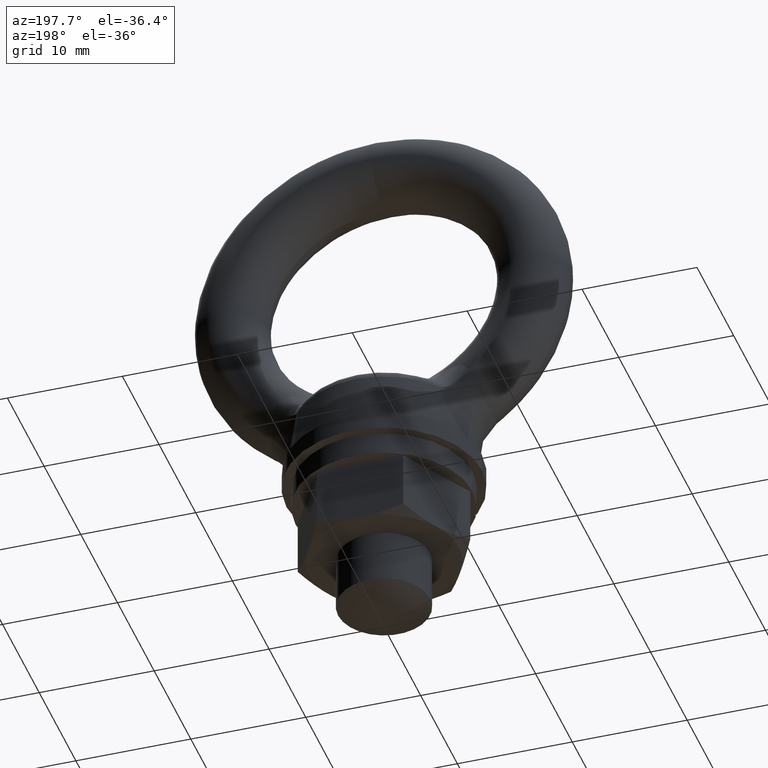
[diagram: clean part render]
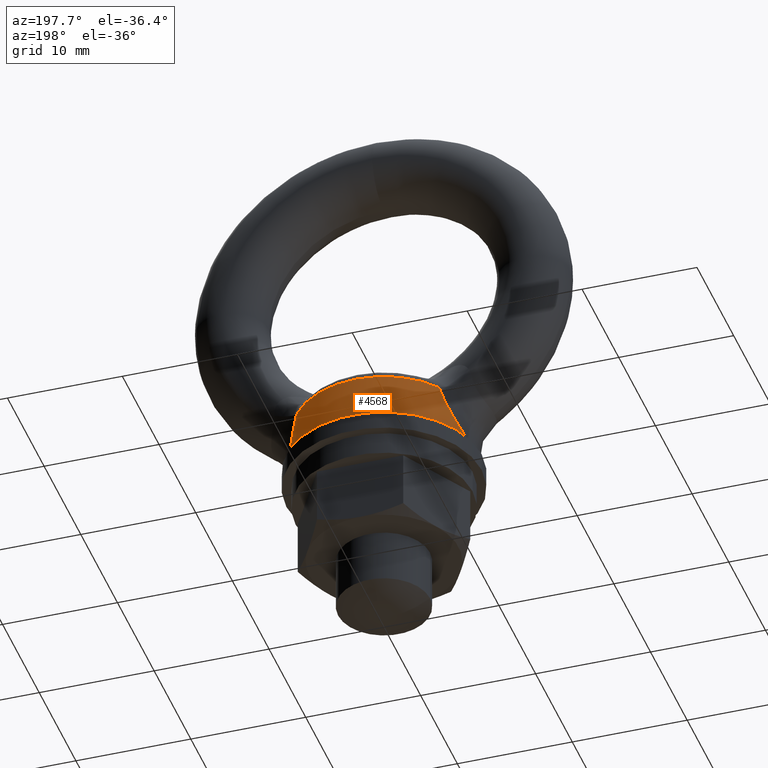
[diagram: same view with one face highlighted and labeled with its STEP entity id]
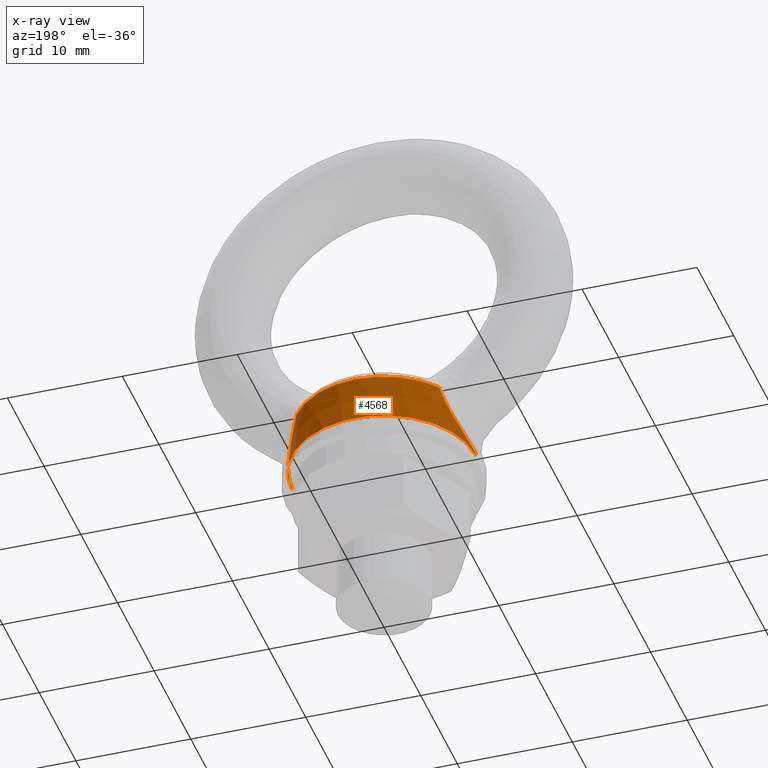
[diagram: x-ray of the same camera — body ghosted, the highlighted face saturated]
A machine part, auxiliary view. The second image highlights one B-rep face of the part: STEP entity #4568.
The next image is the same camera in x-ray: the body ghosted, the highlighted face saturated — about 0% of this face is hidden behind the body in this view.
In plain terms, the highlighted conical surface has half-angle 5 deg.
Its self-contained STEP definition (entity closure, byte-faithful):
#2153 = CIRCLE ( 'NONE', #2197, 7.623795053739380400 ) ;
#2194 = DIRECTION ( 'NONE',  ( 1.000000000000000000, 0.0000000000000000000, 0.0000000000000000000 ) ) ;
#2195 = DIRECTION ( 'NONE',  ( 0.0000000000000000000, 0.0000000000000000000, -1.000000000000000000 ) ) ;
#2196 = CARTESIAN_POINT ( 'NONE',  ( 0.0000000000000000000, 0.0000000000000000000, -12.69996661424272100 ) ) ;
#2197 = AXIS2_PLACEMENT_3D ( 'NONE', #2196, #2195, #2194 ) ;
#2285 = DIRECTION ( 'NONE',  ( -1.000000000000000000, 0.0000000000000000000, 0.0000000000000000000 ) ) ;
#2286 = DIRECTION ( 'NONE',  ( 0.0000000000000000000, 0.0000000000000000000, -1.000000000000000000 ) ) ;
#2287 = CARTESIAN_POINT ( 'NONE',  ( 0.0000000000000000000, 0.0000000000000000000, -17.00000000000000000 ) ) ;
#2288 = AXIS2_PLACEMENT_3D ( 'NONE', #2287, #2286, #2285 ) ;
#2289 = CONICAL_SURFACE ( 'NONE', #2288, 8.000000000000000000, 0.08726664082111058900 ) ;
#2291 = FACE_OUTER_BOUND ( 'NONE', #4553, .T. ) ;
#2327 = CARTESIAN_POINT ( 'NONE',  ( -6.210392761138069600, 4.421908272886815500, -12.69996661424272100 ) ) ;
#2328 = CARTESIAN_POINT ( 'NONE',  ( -6.352774983116775700, 4.303035545892445400, -13.23760804401850400 ) ) ;
#2329 = CARTESIAN_POINT ( 'NONE',  ( -6.521835315794030300, 4.133273454851131000, -13.74751196352283200 ) ) ;
#2330 = CARTESIAN_POINT ( 'NONE',  ( -6.802326438138770500, 3.775150612293932000, -14.46515609343280900 ) ) ;
#2331 = CARTESIAN_POINT ( 'NONE',  ( -6.900199435006725500, 3.638051344731991300, -14.69613900649317600 ) ) ;
#2332 = CARTESIAN_POINT ( 'NONE',  ( -7.094806094114287200, 3.331948585593758900, -15.12746064357346900 ) ) ;
#2333 = CARTESIAN_POINT ( 'NONE',  ( -7.192233262825610900, 3.162189189056240100, -15.32963966651833900 ) ) ;
#2334 = CARTESIAN_POINT ( 'NONE',  ( -7.382050305574232100, 2.783919052358374600, -15.70521348130626100 ) ) ;
#2335 = CARTESIAN_POINT ( 'NONE',  ( -7.474527990394008700, 2.574390398047316600, -15.87859289991847300 ) ) ;
#2336 = CARTESIAN_POINT ( 'NONE',  ( -7.640562853530667600, 2.129507459972071400, -16.17964746929633400 ) ) ;
#2337 = CARTESIAN_POINT ( 'NONE',  ( -7.715214405743791900, 1.892333759044079400, -16.30952380188658400 ) ) ;
#2338 = CARTESIAN_POINT ( 'NONE',  ( -7.841414596894223300, 1.384548204637223300, -16.52470576121613300 ) ) ;
#2339 = CARTESIAN_POINT ( 'NONE',  ( -7.892762876651932700, 1.111512915870895200, -16.60965174227722900 ) ) ;
#2340 = CARTESIAN_POINT ( 'NONE',  ( -7.960509930743505400, 0.5627155035198906400, -16.72093056700588300 ) ) ;
#2341 = CARTESIAN_POINT ( 'NONE',  ( -7.978061295767735000, 0.2837480271616547600, -16.74923997788814500 ) ) ;
#2342 = CARTESIAN_POINT ( 'NONE',  ( -7.978061295766676300, -2.547674772147074800E-011, -16.74923997788642900 ) ) ;
#2346 = CARTESIAN_POINT ( 'NONE',  ( -6.210392761138069600, 4.421908272886815500, -12.69996661424272100 ) ) ;
#2347 = B_SPLINE_CURVE_WITH_KNOTS ( 'NONE', 3,
 ( #2342, #2341, #2340, #2339, #2338, #2337, #2336, #2335, #2334, #2333, #2332, #2331, #2330, #2329, #2328, #2327 ),
 .UNSPECIFIED., .F., .F.,
 ( 4, 2, 2, 2, 2, 2, 2, 4 ),
 ( 0.006793258513159757700, 0.007643701321121398700, 0.008494144129083039700, 0.009344586937044681600, 0.01019502974500632200, 0.01104547255296797100, 0.01189591536092961900, 0.01359680097685292100 ),
 .UNSPECIFIED. ) ;
#2349 = CARTESIAN_POINT ( 'NONE',  ( -7.978061295766676300, -2.547674772147074800E-011, -16.74923997788642900 ) ) ;
#2350 = DIRECTION ( 'NONE',  ( -0.08715592029086469100, 0.0000000000000000000, -0.9961946825587118000 ) ) ;
#2351 = VECTOR ( 'NONE', #2350, 1000.000000000000000 ) ;
#2352 = CARTESIAN_POINT ( 'NONE',  ( -8.000000000000000000, 0.0000000000000000000, -17.00000000000000000 ) ) ;
#2353 = LINE ( 'NONE', #2352, #2351 ) ;
#2357 = DIRECTION ( 'NONE',  ( 0.0000000000000000000, 0.0000000000000000000, -1.000000000000000000 ) ) ;
#2364 = CARTESIAN_POINT ( 'NONE',  ( 0.0000000000000000000, 0.0000000000000000000, -17.00000000000000000 ) ) ;
#2401 = DIRECTION ( 'NONE',  ( -1.000000000000000000, 0.0000000000000000000, 0.0000000000000000000 ) ) ;
#3334 = AXIS2_PLACEMENT_3D ( 'NONE', #2364, #2357, #2401 ) ;
#3335 = CIRCLE ( 'NONE', #3334, 8.000000000000000000 ) ;
#3337 = CARTESIAN_POINT ( 'NONE',  ( 7.978061295766676300, 2.547687685380514800E-011, -16.74923997788642900 ) ) ;
#3338 = CARTESIAN_POINT ( 'NONE',  ( 7.978061295765623800, 0.2833191255498193100, -16.74923997788471700 ) ) ;
#3339 = CARTESIAN_POINT ( 'NONE',  ( 7.959795342409210900, 0.5718046275041904800, -16.71977356463808600 ) ) ;
#3340 = CARTESIAN_POINT ( 'NONE',  ( 7.890987243053435100, 1.122473905029033300, -16.60671778006375000 ) ) ;
#3341 = CARTESIAN_POINT ( 'NONE',  ( 7.840879418701055300, 1.387375438696458100, -16.52382155039643800 ) ) ;
#3342 = CARTESIAN_POINT ( 'NONE',  ( 7.713738907019216400, 1.897586032504909600, -16.30697918787685900 ) ) ;
#3343 = CARTESIAN_POINT ( 'NONE',  ( 7.637741625136119000, 2.137843358775208400, -16.17464781627292000 ) ) ;
#3344 = CARTESIAN_POINT ( 'NONE',  ( 7.472070239655748100, 2.580174103661142300, -15.87401695488659400 ) ) ;
#3345 = CARTESIAN_POINT ( 'NONE',  ( 7.381771383096067400, 2.784521537567979700, -15.70467943273329000 ) ) ;
#3346 = CARTESIAN_POINT ( 'NONE',  ( 7.191972160612237100, 3.162662739913072200, -15.32910516627604900 ) ) ;
#3347 = CARTESIAN_POINT ( 'NONE',  ( 7.093108766145618900, 3.334768518180766300, -15.12382258030863200 ) ) ;
#3348 = CARTESIAN_POINT ( 'NONE',  ( 6.899242522336976400, 3.639404277857393800, -14.69389256611365500 ) ) ;
#3349 = CARTESIAN_POINT ( 'NONE',  ( 6.803290993242570500, 3.773784452342338300, -14.46741059988001900 ) ) ;
#3350 = CARTESIAN_POINT ( 'NONE',  ( 6.617505508660245900, 4.011256946778234000, -13.99249650156617100 ) ) ;
#3351 = CARTESIAN_POINT ( 'NONE',  ( 6.527258717941119700, 4.114688659261673800, -13.74266899169102300 ) ) ;
#3352 = CARTESIAN_POINT ( 'NONE',  ( 6.359387483970397900, 4.290113183179031800, -13.23087931092761400 ) ) ;
#3353 = CARTESIAN_POINT ( 'NONE',  ( 6.281497496774276700, 4.362544022843335000, -12.96846117206049700 ) ) ;
#3354 = CARTESIAN_POINT ( 'NONE',  ( 8.000000000000000000, 9.796850830579018100E-016, -17.00000000000000000 ) ) ;
#3355 = DIRECTION ( 'NONE',  ( 0.08715592029086469100, 1.067316937614295400E-017, -0.9961946825587118000 ) ) ;
#3356 = VECTOR ( 'NONE', #3355, 1000.000000000000000 ) ;
#3357 = CARTESIAN_POINT ( 'NONE',  ( 8.000000000000000000, 9.796850830579018100E-016, -17.00000000000000000 ) ) ;
#3358 = LINE ( 'NONE', #3357, #3356 ) ;
#3359 = CARTESIAN_POINT ( 'NONE',  ( 6.210392761138069600, 4.421908272886815500, -12.69996661424272100 ) ) ;
#3360 = CARTESIAN_POINT ( 'NONE',  ( 6.210392761138069600, 4.421908272886815500, -12.69996661424272100 ) ) ;
#3361 = B_SPLINE_CURVE_WITH_KNOTS ( 'NONE', 3,
 ( #3359, #3353, #3352, #3351, #3350, #3349, #3348, #3347, #3346, #3345, #3344, #3343, #3342, #3341, #3340, #3339, #3338, #3337 ),
 .UNSPECIFIED., .F., .F.,
 ( 4, 2, 2, 2, 2, 2, 2, 2, 4 ),
 ( 0.0000000000000000000, 0.0008491573141449699300, 0.001698314628289939900, 0.002547471942434909600, 0.003396629256579879700, 0.004245786570724849800, 0.005094943884869819100, 0.005944101199014789300, 0.006793258513159759400 ),
 .UNSPECIFIED. ) ;
#3362 = CARTESIAN_POINT ( 'NONE',  ( 7.978061295766676300, 2.547687685380514800E-011, -16.74923997788642900 ) ) ;
#3408 = CARTESIAN_POINT ( 'NONE',  ( -8.000000000000000000, 0.0000000000000000000, -17.00000000000000000 ) ) ;
#4502 = EDGE_CURVE ( 'NONE', #4580, #4611, #2153, .T. ) ;
#4553 = EDGE_LOOP ( 'NONE', ( #4609, #4613, #4616, #4575, #4578, #4581 ) ) ;
#4568 = ADVANCED_FACE ( 'NONE', ( #2291 ), #2289, .T. ) ;
#4575 = ORIENTED_EDGE ( 'NONE', *, *, #4576, .F. ) ;
#4576 = EDGE_CURVE ( 'NONE', #4577, #4648, #2353, .T. ) ;
#4577 = VERTEX_POINT ( 'NONE', #2349 ) ;
#4578 = ORIENTED_EDGE ( 'NONE', *, *, #4579, .T. ) ;
#4579 = EDGE_CURVE ( 'NONE', #4577, #4580, #2347, .T. ) ;
#4580 = VERTEX_POINT ( 'NONE', #2346 ) ;
#4581 = ORIENTED_EDGE ( 'NONE', *, *, #4502, .T. ) ;
#4609 = ORIENTED_EDGE ( 'NONE', *, *, #4610, .T. ) ;
#4610 = EDGE_CURVE ( 'NONE', #4611, #4612, #3361, .T. ) ;
#4611 = VERTEX_POINT ( 'NONE', #3360 ) ;
#4612 = VERTEX_POINT ( 'NONE', #3362 ) ;
#4613 = ORIENTED_EDGE ( 'NONE', *, *, #4614, .T. ) ;
#4614 = EDGE_CURVE ( 'NONE', #4612, #4615, #3358, .T. ) ;
#4615 = VERTEX_POINT ( 'NONE', #3354 ) ;
#4616 = ORIENTED_EDGE ( 'NONE', *, *, #4617, .F. ) ;
#4617 = EDGE_CURVE ( 'NONE', #4648, #4615, #3335, .T. ) ;
#4648 = VERTEX_POINT ( 'NONE', #3408 ) ;